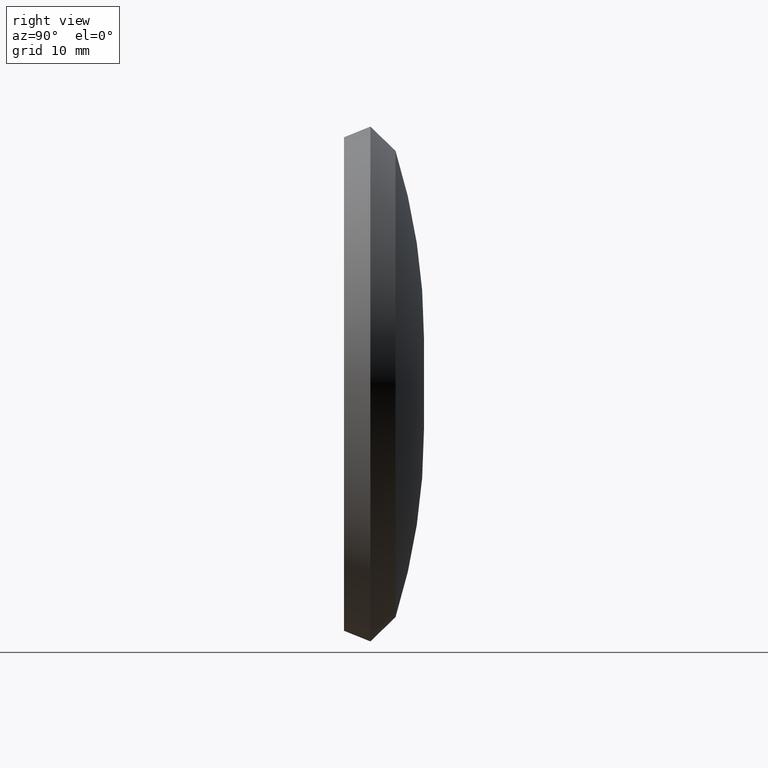
[diagram: clean part render]
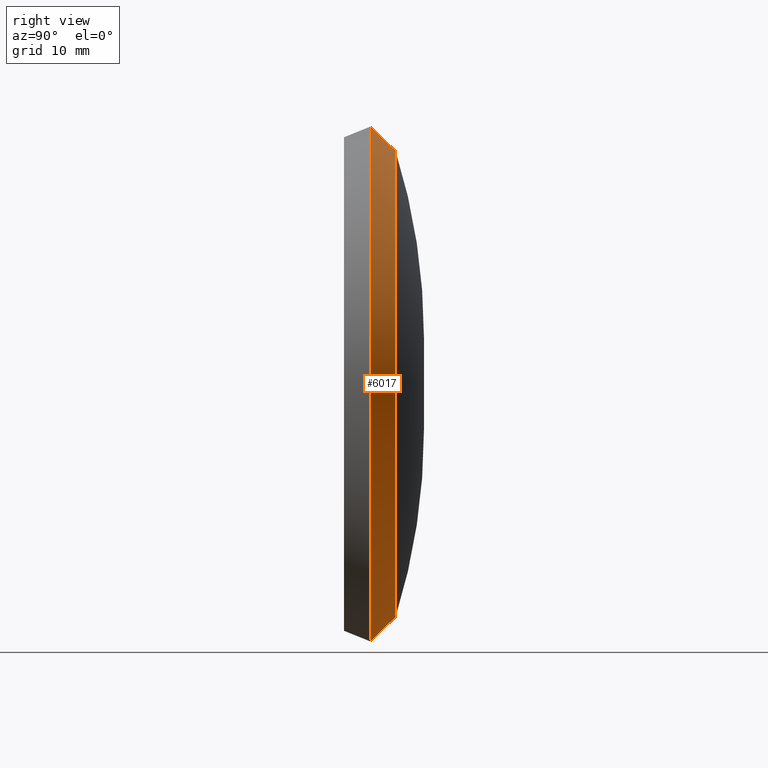
[diagram: same view with one face highlighted and labeled with its STEP entity id]
A machine part, right view. The second image highlights one B-rep face of the part: STEP entity #6017.
In plain terms, the highlighted conical surface has half-angle 44 deg.
Its self-contained STEP definition (entity closure, byte-faithful):
#85 = LINE ( 'NONE', #7129, #757 ) ;
#501 = DIRECTION ( 'NONE',  ( 0.000000000000000000, 0.000000000000000000, -1.000000000000000000 ) ) ;
#757 = VECTOR ( 'NONE', #1740, 999.9999999999998863 ) ;
#995 = DIRECTION ( 'NONE',  ( 8.507111498835308875E-17, -0.7193398003386483053, 0.6946583704590002517 ) ) ;
#1260 = DIRECTION ( 'NONE',  ( -0.000000000000000000, -1.000000000000000000, -0.000000000000000000 ) ) ;
#1402 = EDGE_CURVE ( 'NONE', #2600, #9294, #85, .T. ) ;
#1433 = CARTESIAN_POINT ( 'NONE',  ( 3.551475717527324030E-15, 2.966988334613713807, -29.00000000000000000 ) ) ;
#1462 = EDGE_LOOP ( 'NONE', ( #6426, #13429, #11369, #6736 ) ) ;
#1740 = DIRECTION ( 'NONE',  ( 0.000000000000000000, -0.7193398003386483053, -0.6946583704590002517 ) ) ;
#2600 = VERTEX_POINT ( 'NONE', #4107 ) ;
#3017 = CARTESIAN_POINT ( 'NONE',  ( 0.000000000000000000, 2.966988334613713807, 0.000000000000000000 ) ) ;
#3027 = CONICAL_SURFACE ( 'NONE', #8555, 29.00000000000000000, 0.7679448708775090671 ) ;
#3559 = VECTOR ( 'NONE', #995, 999.9999999999998863 ) ;
#4042 = DIRECTION ( 'NONE',  ( -0.000000000000000000, -1.000000000000000000, -0.000000000000000000 ) ) ;
#4107 = CARTESIAN_POINT ( 'NONE',  ( 0.000000000000000000, 5.797994029658290138, -26.26612957888053401 ) ) ;
#4169 = EDGE_CURVE ( 'NONE', #11650, #8015, #4217, .T. ) ;
#4217 = LINE ( 'NONE', #11692, #3559 ) ;
#5805 = DIRECTION ( 'NONE',  ( -0.000000000000000000, -1.000000000000000000, -0.000000000000000000 ) ) ;
#6017 = ADVANCED_FACE ( 'NONE', ( #10921 ), #3027, .T. ) ;
#6426 = ORIENTED_EDGE ( 'NONE', *, *, #10304, .T. ) ;
#6437 = EDGE_CURVE ( 'NONE', #9294, #8015, #13291, .T. ) ;
#6736 = ORIENTED_EDGE ( 'NONE', *, *, #1402, .F. ) ;
#7129 = CARTESIAN_POINT ( 'NONE',  ( 0.000000000000000000, 2.966988334613713807, -29.00000000000000000 ) ) ;
#8015 = VERTEX_POINT ( 'NONE', #12740 ) ;
#8369 = AXIS2_PLACEMENT_3D ( 'NONE', #12212, #5805, #501 ) ;
#8555 = AXIS2_PLACEMENT_3D ( 'NONE', #9999, #1260, #10974 ) ;
#8879 = CIRCLE ( 'NONE', #8369, 26.26612957888053401 ) ;
#9294 = VERTEX_POINT ( 'NONE', #1433 ) ;
#9472 = AXIS2_PLACEMENT_3D ( 'NONE', #3017, #4042, #10629 ) ;
#9999 = CARTESIAN_POINT ( 'NONE',  ( 0.000000000000000000, 2.966988334613713807, 0.000000000000000000 ) ) ;
#10304 = EDGE_CURVE ( 'NONE', #2600, #11650, #8879, .T. ) ;
#10629 = DIRECTION ( 'NONE',  ( 0.000000000000000000, 0.000000000000000000, -1.000000000000000000 ) ) ;
#10921 = FACE_OUTER_BOUND ( 'NONE', #1462, .T. ) ;
#10974 = DIRECTION ( 'NONE',  ( 0.000000000000000000, 0.000000000000000000, -1.000000000000000000 ) ) ;
#11369 = ORIENTED_EDGE ( 'NONE', *, *, #6437, .F. ) ;
#11650 = VERTEX_POINT ( 'NONE', #13911 ) ;
#11692 = CARTESIAN_POINT ( 'NONE',  ( 3.551475717527324030E-15, 2.966988334613713807, 29.00000000000000000 ) ) ;
#12212 = CARTESIAN_POINT ( 'NONE',  ( 0.000000000000000000, 5.797994029658290138, 0.000000000000000000 ) ) ;
#12740 = CARTESIAN_POINT ( 'NONE',  ( 0.000000000000000000, 2.966988334613713807, 29.00000000000000000 ) ) ;
#13291 = CIRCLE ( 'NONE', #9472, 29.00000000000000000 ) ;
#13429 = ORIENTED_EDGE ( 'NONE', *, *, #4169, .T. ) ;
#13911 = CARTESIAN_POINT ( 'NONE',  ( 3.384074434501944950E-15, 5.797994029658290138, 26.26612957888053401 ) ) ;